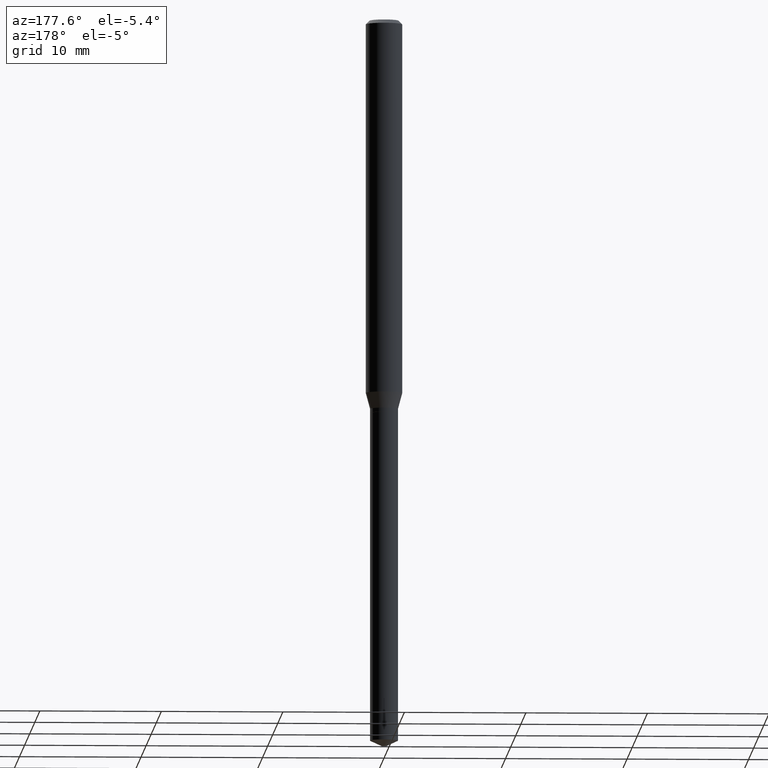
[diagram: clean part render]
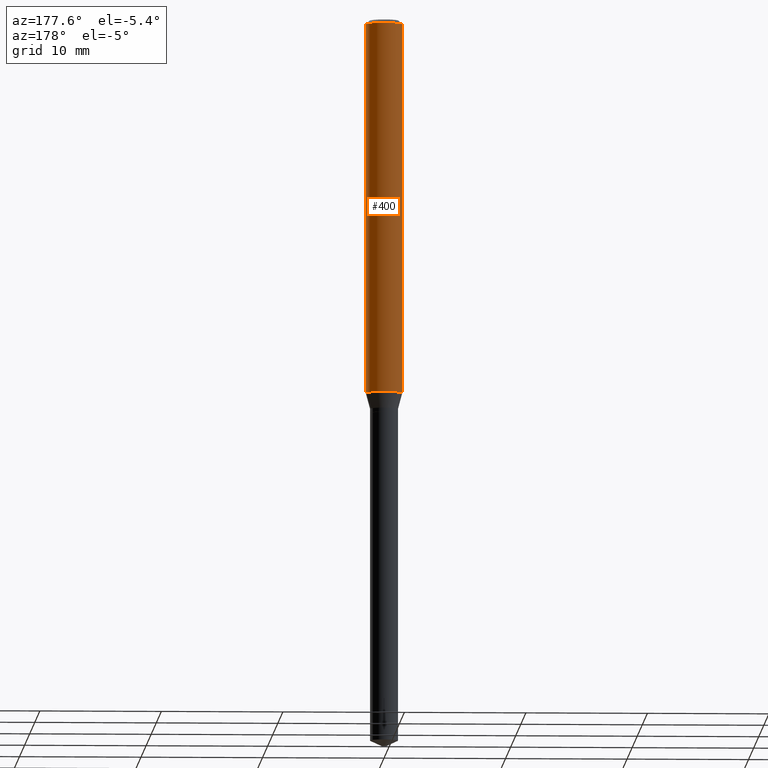
[diagram: same view with one face highlighted and labeled with its STEP entity id]
A machine part, auxiliary view. The second image highlights one B-rep face of the part: STEP entity #400.
In plain terms, the highlighted cylindrical surface (edge-blend (fillet) strip) has radius 1.4999 mm, axis along (-0, 0, 1).
Its self-contained STEP definition (entity closure, byte-faithful):
#7 = DIRECTION ( 'NONE',  ( -2.445468806185136877E-29, 3.491481338843145188E-15, 1.000000000000000000 ) ) ;
#14 = CARTESIAN_POINT ( 'NONE',  ( 2.960201599440548705E-29, -4.226383349286463524E-15, -1.210484301395927664 ) ) ;
#25 = VECTOR ( 'NONE', #7, 39.37007874015748143 ) ;
#31 = VECTOR ( 'NONE', #183, 39.37007874015748143 ) ;
#36 = LINE ( 'NONE', #330, #31 ) ;
#68 = VERTEX_POINT ( 'NONE', #339 ) ;
#85 = CARTESIAN_POINT ( 'NONE',  ( -0.05905000000000015098, -3.806807863820123242E-15, -1.210484301395927664 ) ) ;
#89 = DIRECTION ( 'NONE',  ( 1.000000000000000000, -6.982962677686266711E-15, 0.000000000000000000 ) ) ;
#92 = CIRCLE ( 'NONE', #124, 0.05905000000000015098 ) ;
#124 = AXIS2_PLACEMENT_3D ( 'NONE', #14, #398, #244 ) ;
#130 = DIRECTION ( 'NONE',  ( 1.000000000000000000, -6.982962677686266711E-15, 4.876176775795936353E-29 ) ) ;
#132 = EDGE_CURVE ( 'NONE', #476, #68, #36, .T. ) ;
#134 = AXIS2_PLACEMENT_3D ( 'NONE', #240, #467, #89 ) ;
#158 = EDGE_CURVE ( 'NONE', #300, #195, #462, .T. ) ;
#169 = ORIENTED_EDGE ( 'NONE', *, *, #336, .T. ) ;
#174 = CARTESIAN_POINT ( 'NONE',  ( 0.05905000000000015098, -4.638727295403837655E-15, -1.210484301395927664 ) ) ;
#178 = CIRCLE ( 'NONE', #134, 0.05904999999999999832 ) ;
#183 = DIRECTION ( 'NONE',  ( -2.445468806185136877E-29, 3.491481338843145188E-15, 1.000000000000000000 ) ) ;
#195 = VERTEX_POINT ( 'NONE', #261 ) ;
#206 = FACE_OUTER_BOUND ( 'NONE', #260, .T. ) ;
#226 = AXIS2_PLACEMENT_3D ( 'NONE', #359, #316, #130 ) ;
#240 = CARTESIAN_POINT ( 'NONE',  ( 2.888098660104663766E-31, -4.123439461173779647E-17, -0.01181000000000007044 ) ) ;
#244 = DIRECTION ( 'NONE',  ( 1.000000000000000000, -6.982962677686262766E-15, 0.000000000000000000 ) ) ;
#260 = EDGE_LOOP ( 'NONE', ( #169, #346, #482, #383 ) ) ;
#261 = CARTESIAN_POINT ( 'NONE',  ( -0.05904999999999999832, -1.714233386482759753E-15, -0.01181000000000007044 ) ) ;
#300 = VERTEX_POINT ( 'NONE', #85 ) ;
#305 = CARTESIAN_POINT ( 'NONE',  ( -0.05905000000000007465, 4.195754854663396902E-16, -2.904631170795525395E-30 ) ) ;
#316 = DIRECTION ( 'NONE',  ( -2.445468806185136597E-29, 3.491481338843145583E-15, 1.000000000000000000 ) ) ;
#324 = CYLINDRICAL_SURFACE ( 'NONE', #226, 0.05905000000000007465 ) ;
#330 = CARTESIAN_POINT ( 'NONE',  ( 0.05905000000000007465, -4.123439461173745750E-16, 2.879382386107504074E-30 ) ) ;
#336 = EDGE_CURVE ( 'NONE', #476, #300, #92, .T. ) ;
#339 = CARTESIAN_POINT ( 'NONE',  ( 0.05904999999999999832, -4.535783407291118600E-16, -0.01181000000000007044 ) ) ;
#346 = ORIENTED_EDGE ( 'NONE', *, *, #158, .T. ) ;
#359 = CARTESIAN_POINT ( 'NONE',  ( 0.000000000000000000, 0.000000000000000000, 0.000000000000000000 ) ) ;
#383 = ORIENTED_EDGE ( 'NONE', *, *, #132, .F. ) ;
#398 = DIRECTION ( 'NONE',  ( -2.445468806185136597E-29, 3.491481338843145583E-15, 1.000000000000000000 ) ) ;
#400 = ADVANCED_FACE ( 'NONE', ( #206 ), #324, .T. ) ;
#421 = EDGE_CURVE ( 'NONE', #68, #195, #178, .T. ) ;
#462 = LINE ( 'NONE', #305, #25 ) ;
#467 = DIRECTION ( 'NONE',  ( -2.445468806185136597E-29, 3.491481338843145583E-15, 1.000000000000000000 ) ) ;
#476 = VERTEX_POINT ( 'NONE', #174 ) ;
#482 = ORIENTED_EDGE ( 'NONE', *, *, #421, .F. ) ;